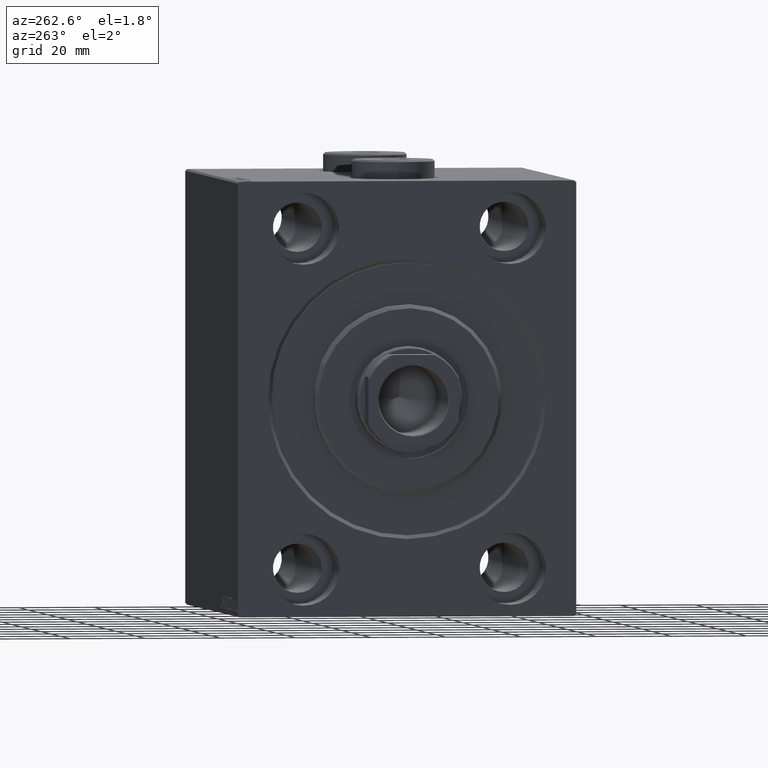
[diagram: clean part render]
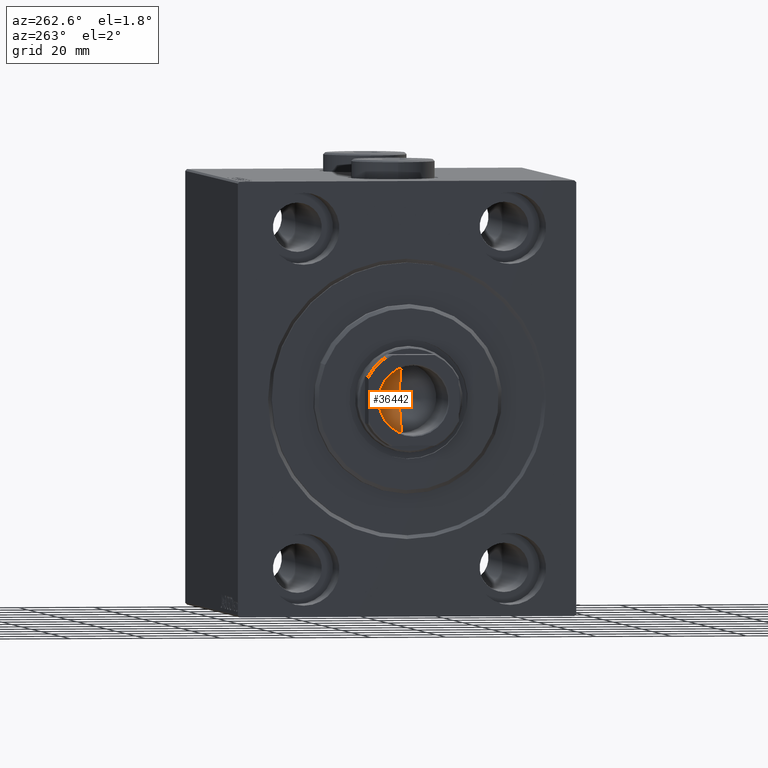
[diagram: same view with one face highlighted and labeled with its STEP entity id]
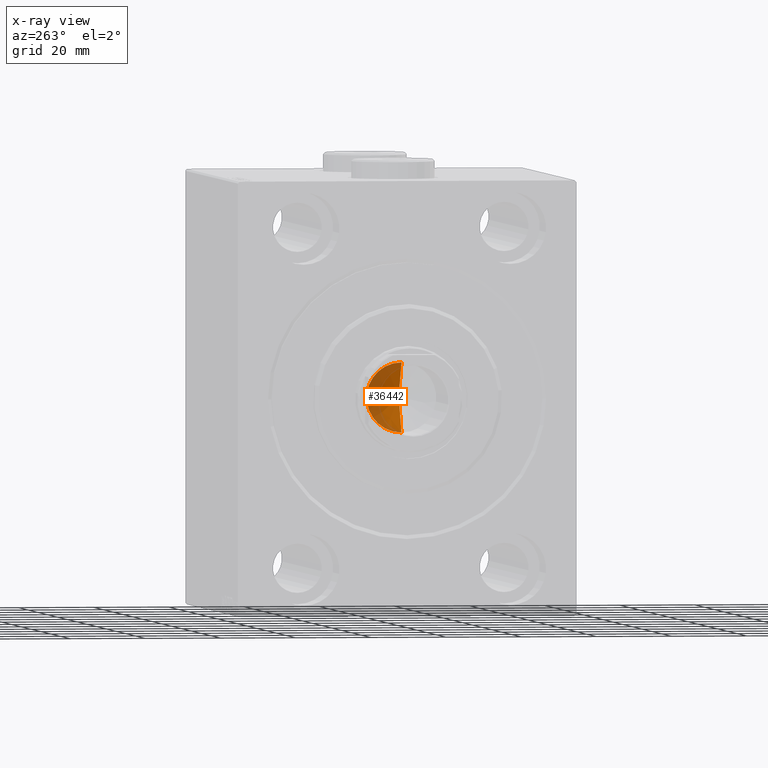
[diagram: x-ray of the same camera — body ghosted, the highlighted face saturated]
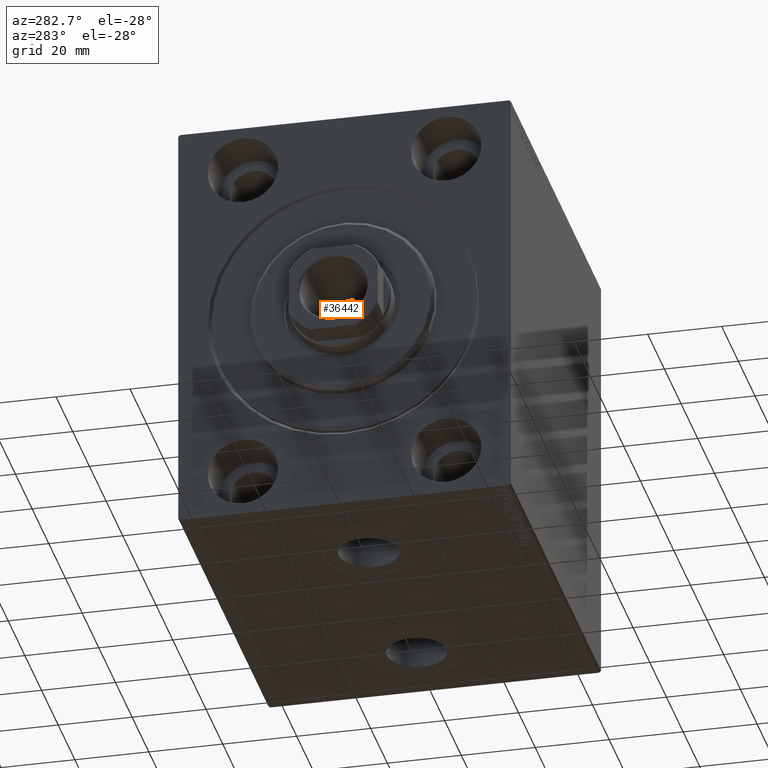
[diagram: same view with one face highlighted and labeled with its STEP entity id]
A machine part, auxiliary view. The second image highlights one B-rep face of the part: STEP entity #36442.
The next image is the same camera in x-ray: the body ghosted, the highlighted face saturated — about 46% of this face is hidden behind the body in this view.
A second angle (auxiliary view) of the same face is appended — the face is thin or edge-on in the first view.
In plain terms, the highlighted conical surface has half-angle 59 deg.
Its self-contained STEP definition (entity closure, byte-faithful):
#937 = CARTESIAN_POINT ( 'NONE',  ( 0.000000000000000000, 0.000000000000000000, 79.00000000000001421 ) ) ;
#1616 = CIRCLE ( 'NONE', #26488, 9.249999999999994671 ) ;
#3260 = DIRECTION ( 'NONE',  ( -0.000000000000000000, -0.000000000000000000, 1.000000000000000000 ) ) ;
#3474 = DIRECTION ( 'NONE',  ( 1.000000000000000000, 0.000000000000000000, 0.000000000000000000 ) ) ;
#4451 = LINE ( 'NONE', #42486, #24025 ) ;
#7590 = DIRECTION ( 'NONE',  ( 1.000000000000000000, 0.000000000000000000, 0.000000000000000000 ) ) ;
#10650 = ORIENTED_EDGE ( 'NONE', *, *, #21696, .T. ) ;
#10981 = CARTESIAN_POINT ( 'NONE',  ( -6.793016015247754405E-15, 0.000000000000000000, 73.44203927399506426 ) ) ;
#14477 = VECTOR ( 'NONE', #39394, 1000.000000000000000 ) ;
#16234 = CONICAL_SURFACE ( 'NONE', #39663, 9.249999999999994671, 1.029744258676652535 ) ;
#19384 = EDGE_CURVE ( 'NONE', #23911, #21395, #4451, .T. ) ;
#21198 = EDGE_LOOP ( 'NONE', ( #21458, #10650, #42710 ) ) ;
#21395 = VERTEX_POINT ( 'NONE', #37247 ) ;
#21458 = ORIENTED_EDGE ( 'NONE', *, *, #19384, .F. ) ;
#21696 = EDGE_CURVE ( 'NONE', #23911, #41349, #28404, .T. ) ;
#21889 = CARTESIAN_POINT ( 'NONE',  ( 9.249999999999994671, 0.000000000000000000, 79.00000000000001421 ) ) ;
#22091 = DIRECTION ( 'NONE',  ( -0.8571673007021113344, 1.049727191138617463E-16, 0.5150380749100558209 ) ) ;
#23911 = VERTEX_POINT ( 'NONE', #10981 ) ;
#24025 = VECTOR ( 'NONE', #22091, 1000.000000000000000 ) ;
#25417 = CARTESIAN_POINT ( 'NONE',  ( 9.249999999999994671, 0.000000000000000000, 79.00000000000001421 ) ) ;
#26488 = AXIS2_PLACEMENT_3D ( 'NONE', #937, #28199, #7590 ) ;
#28199 = DIRECTION ( 'NONE',  ( -0.000000000000000000, -0.000000000000000000, 1.000000000000000000 ) ) ;
#28404 = LINE ( 'NONE', #25417, #14477 ) ;
#33024 = EDGE_CURVE ( 'NONE', #41349, #21395, #1616, .T. ) ;
#34654 = FACE_OUTER_BOUND ( 'NONE', #21198, .T. ) ;
#36442 = ADVANCED_FACE ( 'NONE', ( #34654 ), #16234, .F. ) ;
#37247 = CARTESIAN_POINT ( 'NONE',  ( -9.249999999999994671, 1.132798289211300909E-15, 79.00000000000001421 ) ) ;
#38304 = CARTESIAN_POINT ( 'NONE',  ( 0.000000000000000000, 0.000000000000000000, 79.00000000000001421 ) ) ;
#39394 = DIRECTION ( 'NONE',  ( 0.8571673007021113344, 0.000000000000000000, 0.5150380749100558209 ) ) ;
#39663 = AXIS2_PLACEMENT_3D ( 'NONE', #38304, #3260, #3474 ) ;
#41349 = VERTEX_POINT ( 'NONE', #21889 ) ;
#42486 = CARTESIAN_POINT ( 'NONE',  ( -9.249999999999994671, 1.132798289211300909E-15, 79.00000000000001421 ) ) ;
#42710 = ORIENTED_EDGE ( 'NONE', *, *, #33024, .T. ) ;